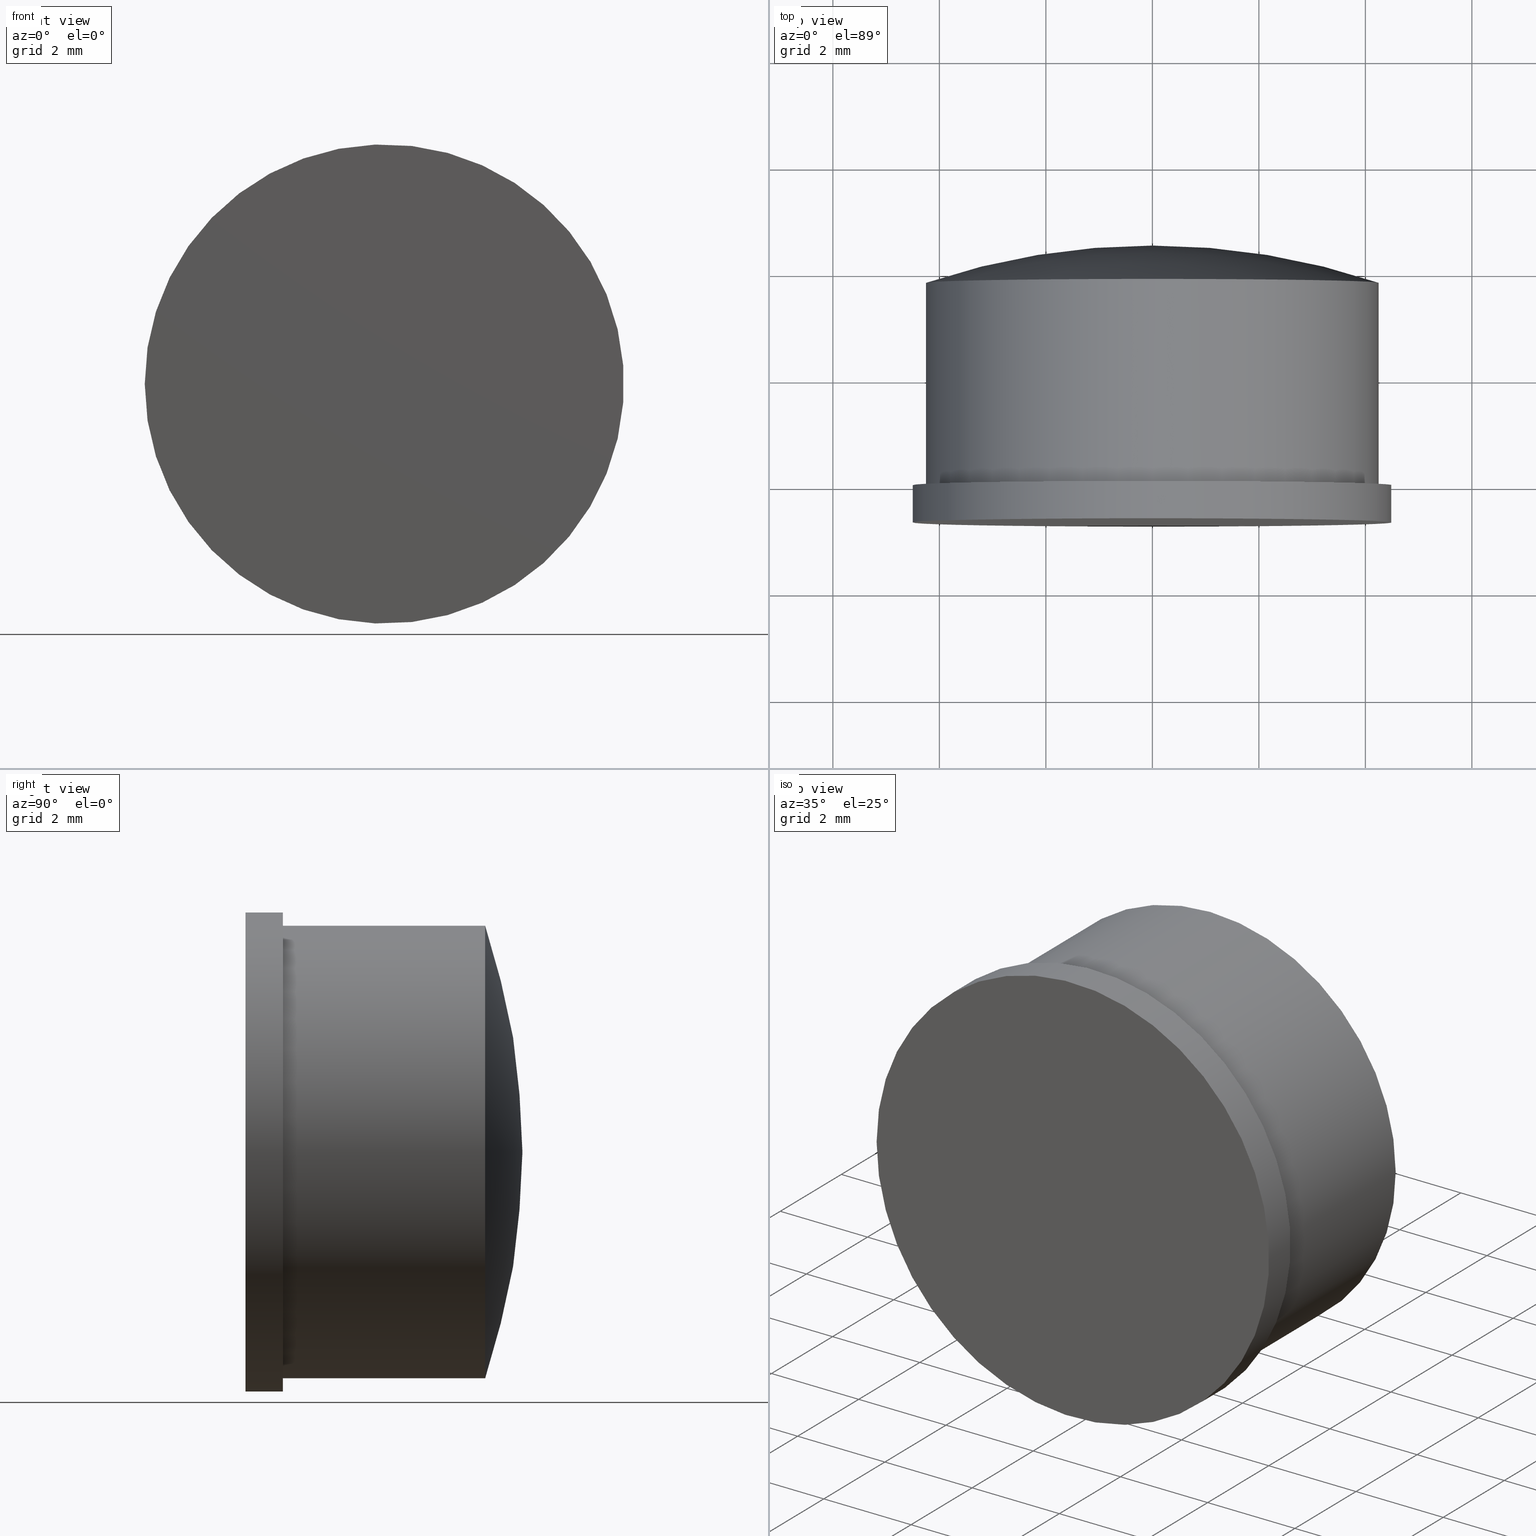
[diagram: canonical four-view strip — front | top / right | iso, engineering-drawing reading convention]
A machine part, canonical four-view strip (front | top / right | iso — engineering-drawing reading convention). The complete STEP part file that produces these views, byte-faithful:
ISO-10303-21;
HEADER;
/* Generated by software containing ST-Developer
 * from STEP Tools, Inc. (www.steptools.com) 
 */

FILE_DESCRIPTION(
/* description */ (''),
/* implementation_level */ '2;1');

FILE_NAME(
/* name */ '\\\\SYNOLOGYNAS\\web\\db2\\PR2-9-5T\\\X2\B3C4BA74\X0\\\PR2
-9-5T.stp',
/* time_stamp */ '2024-10-09T13:48:33+09:00',
/* author */ ('user'),
/* organization */ (''),
/* preprocessor_version */ 'ST-DEVELOPER v15.6',
/* originating_system */ 'Autodesk Inventor 2015',
/* authorisation */ '');

FILE_SCHEMA (('AUTOMOTIVE_DESIGN { 1 0 10303 214 3 1 1 }'));
ENDSEC;

DATA;
#10=MECHANICAL_DESIGN_GEOMETRIC_PRESENTATION_REPRESENTATION('',(#13),#109);
#11=SHAPE_REPRESENTATION_RELATIONSHIP('SRR','None',#118,#12);
#12=ADVANCED_BREP_SHAPE_REPRESENTATION($,(#14),#108);
#13=STYLED_ITEM('',(#127),#14);
#14=MANIFOLD_SOLID_BREP('\X2\C194B9ACB4DC\X0\2',#61);
#15=SPHERICAL_SURFACE('',#71,13.2517857142857);
#16=PLANE('',#66);
#17=PLANE('',#70);
#18=FACE_BOUND('',#27,.T.);
#19=FACE_BOUND('',#30,.T.);
#20=FACE_BOUND('',#32,.T.);
#21=FACE_OUTER_BOUND('',#26,.T.);
#22=FACE_OUTER_BOUND('',#28,.T.);
#23=FACE_OUTER_BOUND('',#29,.T.);
#24=FACE_OUTER_BOUND('',#31,.T.);
#25=FACE_OUTER_BOUND('',#33,.T.);
#26=EDGE_LOOP('',(#46));
#27=EDGE_LOOP('',(#47));
#28=EDGE_LOOP('',(#48));
#29=EDGE_LOOP('',(#49));
#30=EDGE_LOOP('',(#50));
#31=EDGE_LOOP('',(#51));
#32=EDGE_LOOP('',(#52));
#33=EDGE_LOOP('',(#53));
#34=CIRCLE('',#64,4.25);
#35=CIRCLE('',#65,4.25);
#36=CIRCLE('',#67,4.5);
#37=CIRCLE('',#69,4.5);
#38=VERTEX_POINT('',#94);
#39=VERTEX_POINT('',#96);
#40=VERTEX_POINT('',#99);
#41=VERTEX_POINT('',#102);
#42=EDGE_CURVE('',#38,#38,#34,.T.);
#43=EDGE_CURVE('',#39,#39,#35,.T.);
#44=EDGE_CURVE('',#40,#40,#36,.T.);
#45=EDGE_CURVE('',#41,#41,#37,.T.);
#46=ORIENTED_EDGE('',*,*,#42,.F.);
#47=ORIENTED_EDGE('',*,*,#43,.T.);
#48=ORIENTED_EDGE('',*,*,#44,.F.);
#49=ORIENTED_EDGE('',*,*,#45,.F.);
#50=ORIENTED_EDGE('',*,*,#44,.T.);
#51=ORIENTED_EDGE('',*,*,#45,.T.);
#52=ORIENTED_EDGE('',*,*,#43,.F.);
#53=ORIENTED_EDGE('',*,*,#42,.T.);
#54=CYLINDRICAL_SURFACE('',#63,4.25);
#55=CYLINDRICAL_SURFACE('',#68,4.5);
#56=ADVANCED_FACE('',(#21,#18),#54,.T.);
#57=ADVANCED_FACE('',(#22),#16,.T.);
#58=ADVANCED_FACE('',(#23,#19),#55,.T.);
#59=ADVANCED_FACE('',(#24,#20),#17,.T.);
#60=ADVANCED_FACE('',(#25),#15,.T.);
#61=CLOSED_SHELL('',(#56,#57,#58,#59,#60));
#62=AXIS2_PLACEMENT_3D('placement',#92,#72,#73);
#63=AXIS2_PLACEMENT_3D('',#93,#74,#75);
#64=AXIS2_PLACEMENT_3D('',#95,#76,#77);
#65=AXIS2_PLACEMENT_3D('',#97,#78,#79);
#66=AXIS2_PLACEMENT_3D('',#98,#80,#81);
#67=AXIS2_PLACEMENT_3D('',#100,#82,#83);
#68=AXIS2_PLACEMENT_3D('',#101,#84,#85);
#69=AXIS2_PLACEMENT_3D('',#103,#86,#87);
#70=AXIS2_PLACEMENT_3D('',#104,#88,#89);
#71=AXIS2_PLACEMENT_3D('',#105,#90,#91);
#72=DIRECTION('axis',(0.,0.,1.));
#73=DIRECTION('refdir',(1.,0.,0.));
#74=DIRECTION('center_axis',(-2.94285525206709E-17,1.,0.));
#75=DIRECTION('ref_axis',(-1.,-3.26512559569265E-17,0.));
#76=DIRECTION('center_axis',(-2.94285525206709E-17,1.,0.));
#77=DIRECTION('ref_axis',(-1.,0.,0.));
#78=DIRECTION('center_axis',(-2.94285525206709E-17,1.,0.));
#79=DIRECTION('ref_axis',(-1.,-3.26512559569265E-17,0.));
#80=DIRECTION('center_axis',(2.94285525206709E-17,-1.,0.));
#81=DIRECTION('ref_axis',(0.,0.,-1.));
#82=DIRECTION('center_axis',(-2.94285525206709E-17,1.,0.));
#83=DIRECTION('ref_axis',(-1.,-3.26512559569265E-17,0.));
#84=DIRECTION('center_axis',(-2.94285525206709E-17,1.,0.));
#85=DIRECTION('ref_axis',(-1.,-3.26512559569265E-17,0.));
#86=DIRECTION('center_axis',(-2.94285525206709E-17,1.,0.));
#87=DIRECTION('ref_axis',(-1.,-3.26512559569265E-17,0.));
#88=DIRECTION('center_axis',(-2.94285525206709E-17,1.,0.));
#89=DIRECTION('ref_axis',(0.,0.,1.));
#90=DIRECTION('center_axis',(6.12323399573676E-17,0.,1.));
#91=DIRECTION('ref_axis',(1.,0.,0.));
#92=CARTESIAN_POINT('',(0.,0.,0.));
#93=CARTESIAN_POINT('Origin',(-7.65142365537444E-17,1.9,0.));
#94=CARTESIAN_POINT('',(-4.25,3.8,0.));
#95=CARTESIAN_POINT('Origin',(-1.32428486343019E-16,3.8,0.));
#96=CARTESIAN_POINT('',(-4.25,0.,0.));
#97=CARTESIAN_POINT('Origin',(-2.05999867644696E-17,1.25071348212851E-16,
0.));
#98=CARTESIAN_POINT('Origin',(-2.25,-0.7,0.));
#99=CARTESIAN_POINT('',(-4.5,-0.7,0.));
#100=CARTESIAN_POINT('Origin',(-3.85185988877447E-33,-0.7,0.));
#101=CARTESIAN_POINT('Origin',(-1.02999933822348E-17,-0.35,0.));
#102=CARTESIAN_POINT('',(-4.5,0.,0.));
#103=CARTESIAN_POINT('Origin',(-2.05999867644696E-17,1.32428486343019E-16,
0.));
#104=CARTESIAN_POINT('Origin',(-4.375,0.,0.));
#105=CARTESIAN_POINT('Origin',(2.15105711021124E-15,-8.75178571428571,0.));
#106=UNCERTAINTY_MEASURE_WITH_UNIT(LENGTH_MEASURE(0.01),#110,
'DISTANCE_ACCURACY_VALUE',
'Maximum model space distance between geometric entities at asserted c
onnectivities');
#107=UNCERTAINTY_MEASURE_WITH_UNIT(LENGTH_MEASURE(1.E-6),#110,
'DISTANCE_ACCURACY_VALUE',
'Maximum model space distance between geometric entities at asserted c
onnectivities');
#108=(
GEOMETRIC_REPRESENTATION_CONTEXT(3)
GLOBAL_UNCERTAINTY_ASSIGNED_CONTEXT((#106))
GLOBAL_UNIT_ASSIGNED_CONTEXT((#110,#113,#111))
REPRESENTATION_CONTEXT('','3D')
);
#109=(
GEOMETRIC_REPRESENTATION_CONTEXT(3)
GLOBAL_UNCERTAINTY_ASSIGNED_CONTEXT((#107))
GLOBAL_UNIT_ASSIGNED_CONTEXT((#110,#113,#111))
REPRESENTATION_CONTEXT('','3D')
);
#110=(
LENGTH_UNIT()
NAMED_UNIT(*)
SI_UNIT(.MILLI.,.METRE.)
);
#111=(
NAMED_UNIT(*)
SI_UNIT($,.STERADIAN.)
SOLID_ANGLE_UNIT()
);
#112=DIMENSIONAL_EXPONENTS(0.,0.,0.,0.,0.,0.,0.);
#113=(
CONVERSION_BASED_UNIT('degree',#115)
NAMED_UNIT(#112)
PLANE_ANGLE_UNIT()
);
#114=(
NAMED_UNIT(*)
PLANE_ANGLE_UNIT()
SI_UNIT($,.RADIAN.)
);
#115=PLANE_ANGLE_MEASURE_WITH_UNIT(PLANE_ANGLE_MEASURE(0.01745329252),#114);
#116=SHAPE_DEFINITION_REPRESENTATION(#117,#118);
#117=PRODUCT_DEFINITION_SHAPE('',$,#120);
#118=SHAPE_REPRESENTATION('',(#62),#108);
#119=PRODUCT_DEFINITION_CONTEXT('part definition',#124,'design');
#120=PRODUCT_DEFINITION('DR_PR2-9-5T','DR_PR2-9-5T',#121,#119);
#121=PRODUCT_DEFINITION_FORMATION('',$,#126);
#122=PRODUCT_RELATED_PRODUCT_CATEGORY('DR_PR2-9-5T','DR_PR2-9-5T',(#126));
#123=APPLICATION_PROTOCOL_DEFINITION('international standard',
'automotive_design',2009,#124);
#124=APPLICATION_CONTEXT(
'Core Data for Automotive Mechanical Design Process');
#125=PRODUCT_CONTEXT('part definition',#124,'mechanical');
#126=PRODUCT('DR_PR2-9-5T','DR_PR2-9-5T',$,(#125));
#127=PRESENTATION_STYLE_ASSIGNMENT((#128));
#128=SURFACE_STYLE_USAGE(.BOTH.,#129);
#129=SURFACE_SIDE_STYLE($,(#130));
#130=SURFACE_STYLE_FILL_AREA(#131);
#131=FILL_AREA_STYLE($,(#132));
#132=FILL_AREA_STYLE_COLOUR($,#133);
#133=COLOUR_RGB('',1.,1.,1.);
ENDSEC;
END-ISO-10303-21;
